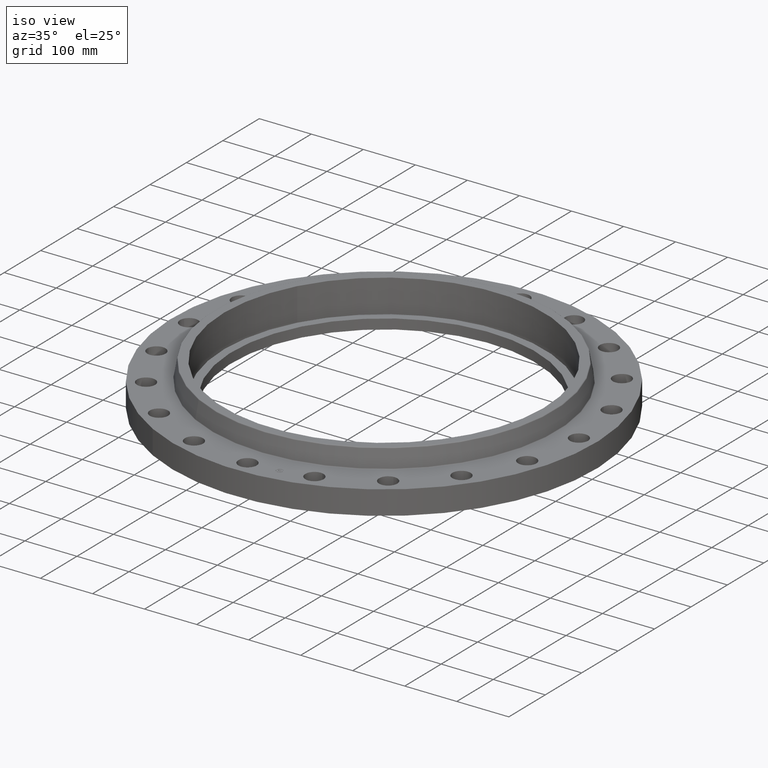
[diagram: clean part render]
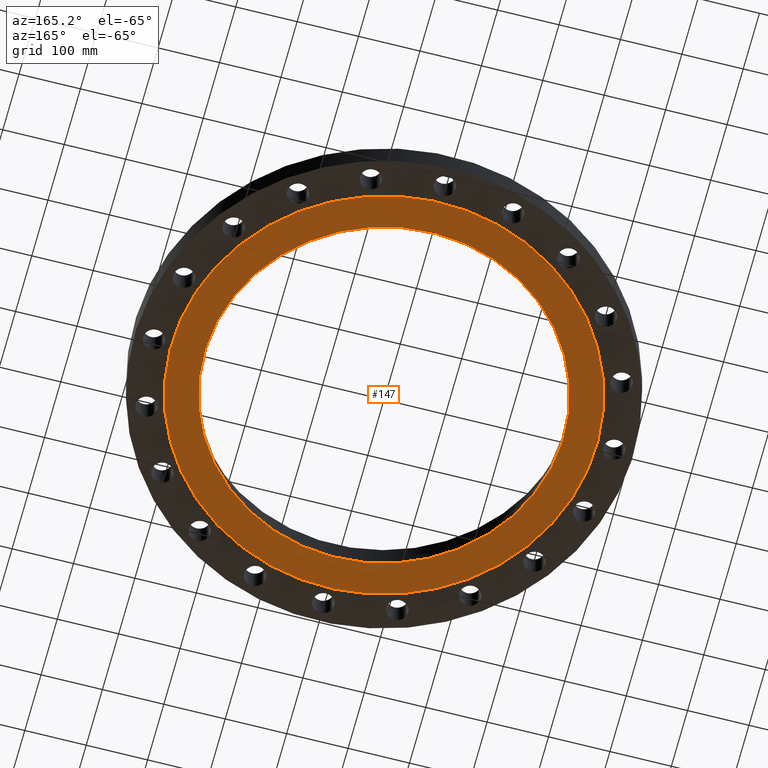
[diagram: tour spotlight — one face highlighted and labeled with its STEP entity id]
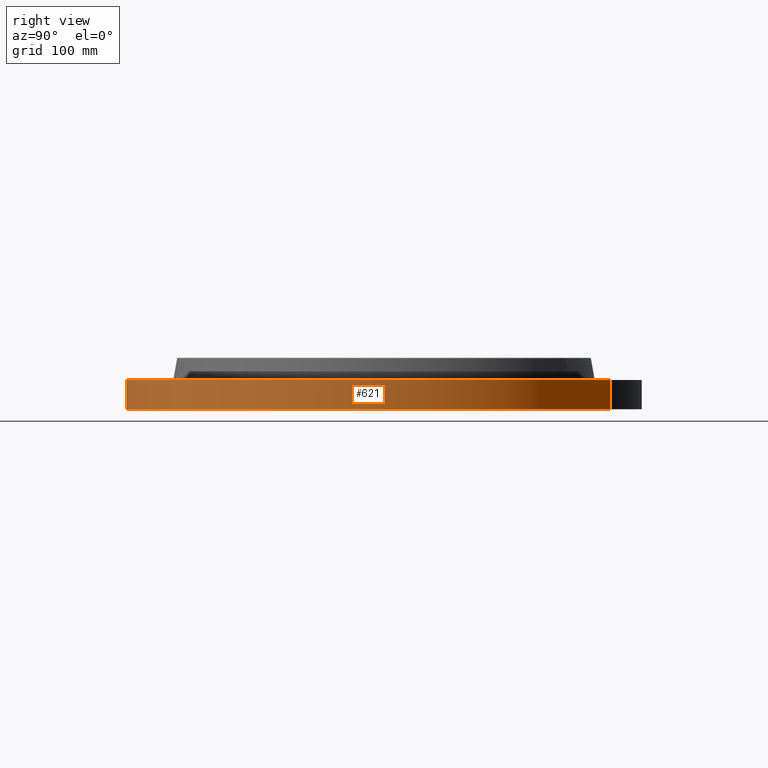
[diagram: tour spotlight — one face highlighted and labeled with its STEP entity id]
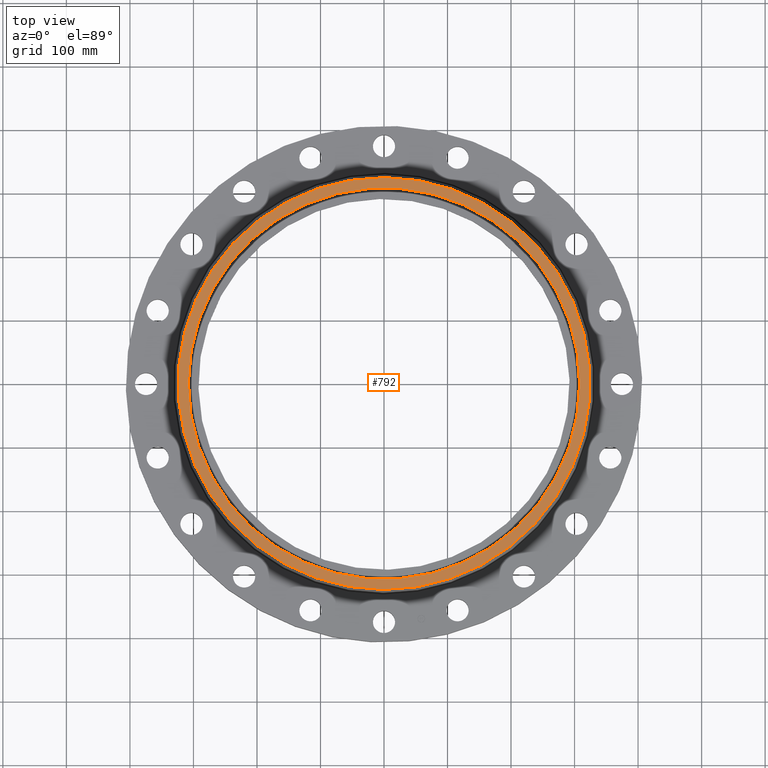
[diagram: tour spotlight — one face highlighted and labeled with its STEP entity id]
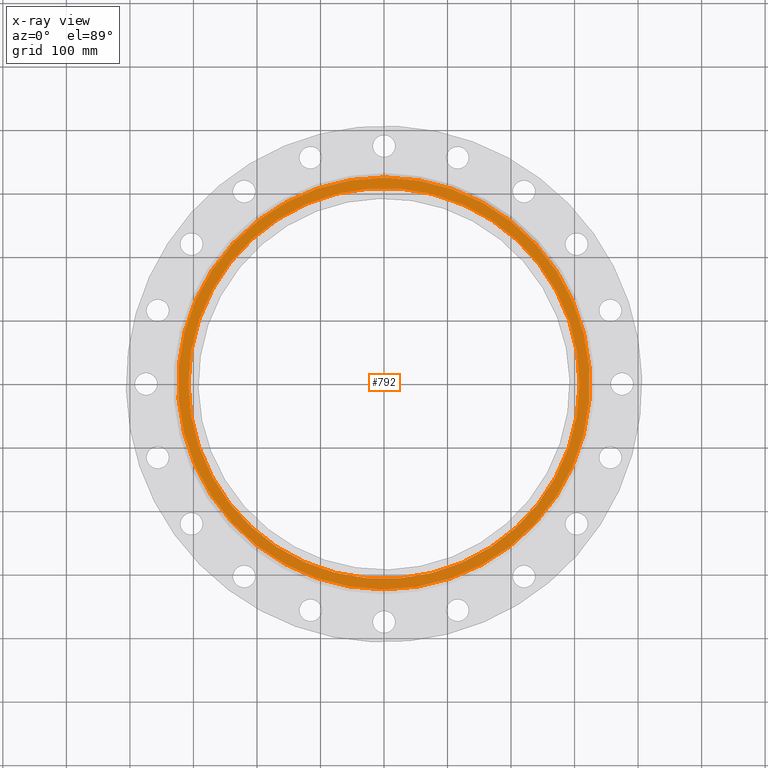
[diagram: x-ray of the same camera — body ghosted, this tour face saturated]
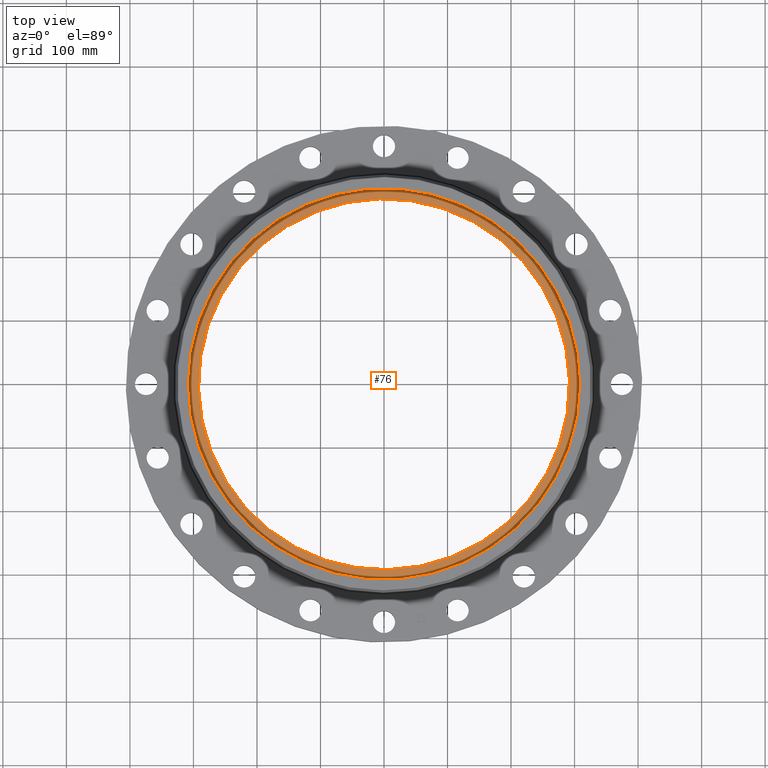
[diagram: tour spotlight — one face highlighted and labeled with its STEP entity id]
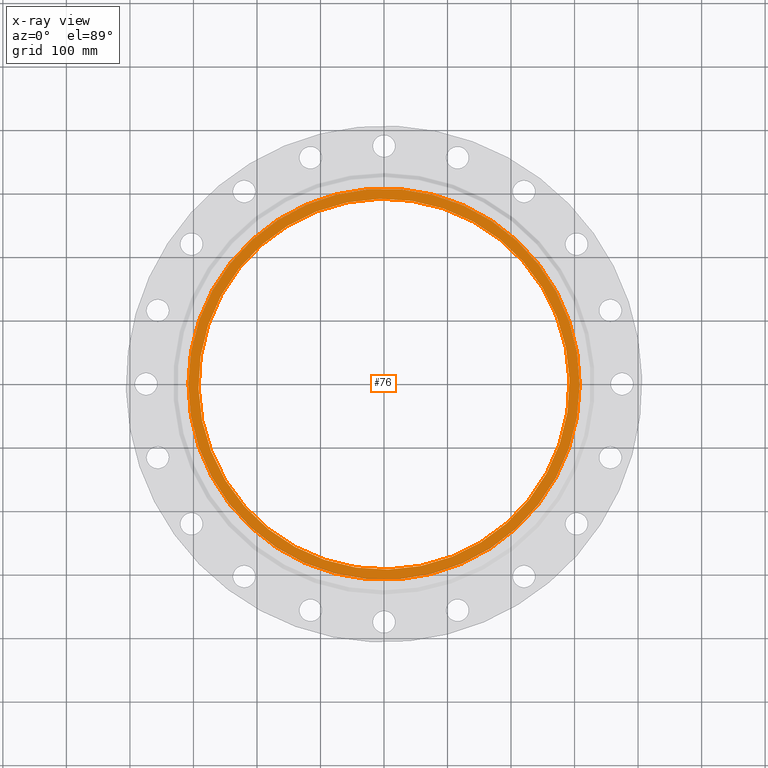
[diagram: x-ray of the same camera — body ghosted, this tour face saturated]
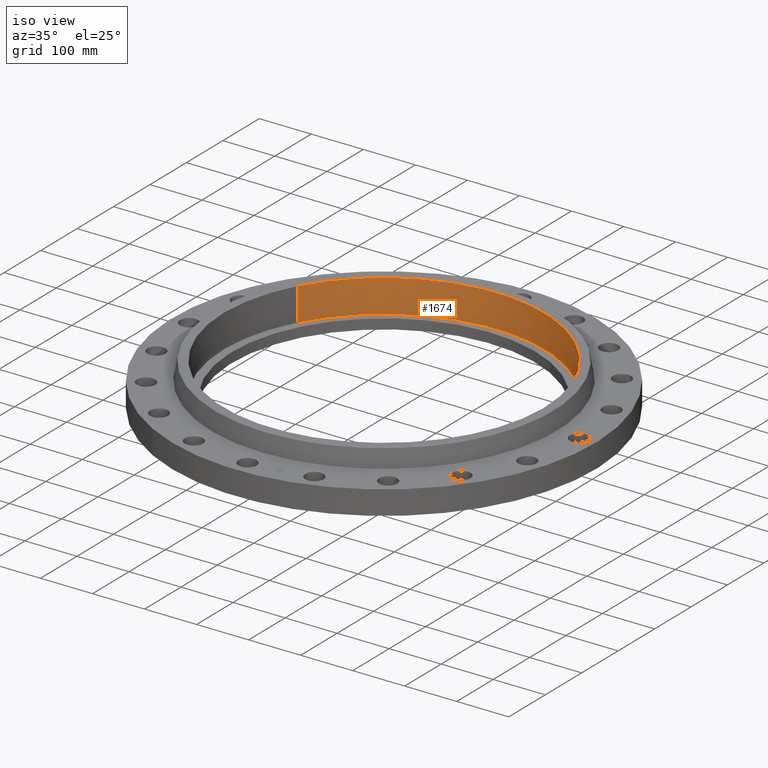
[diagram: tour spotlight — one face highlighted and labeled with its STEP entity id]
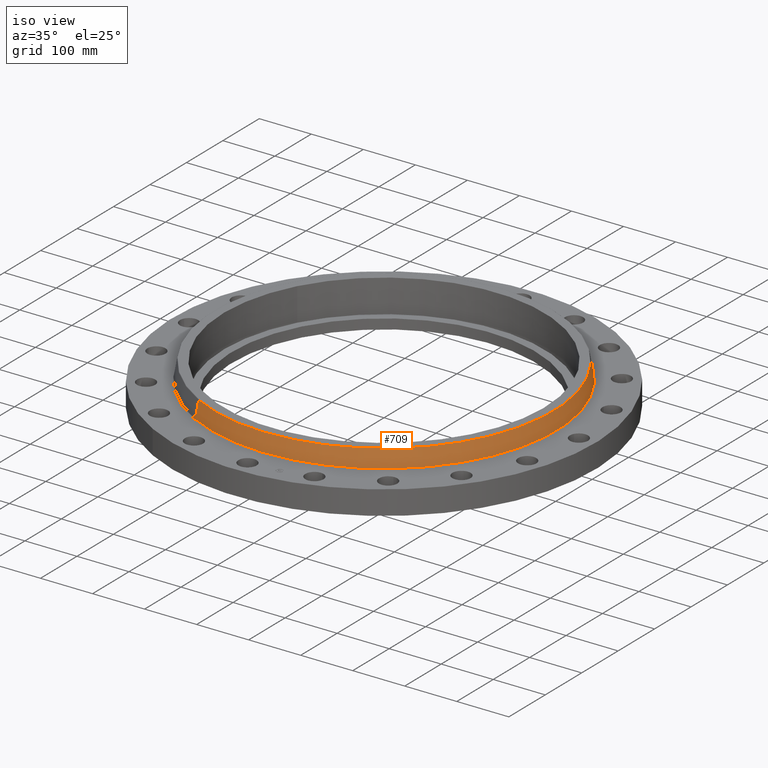
[diagram: tour spotlight — one face highlighted and labeled with its STEP entity id]
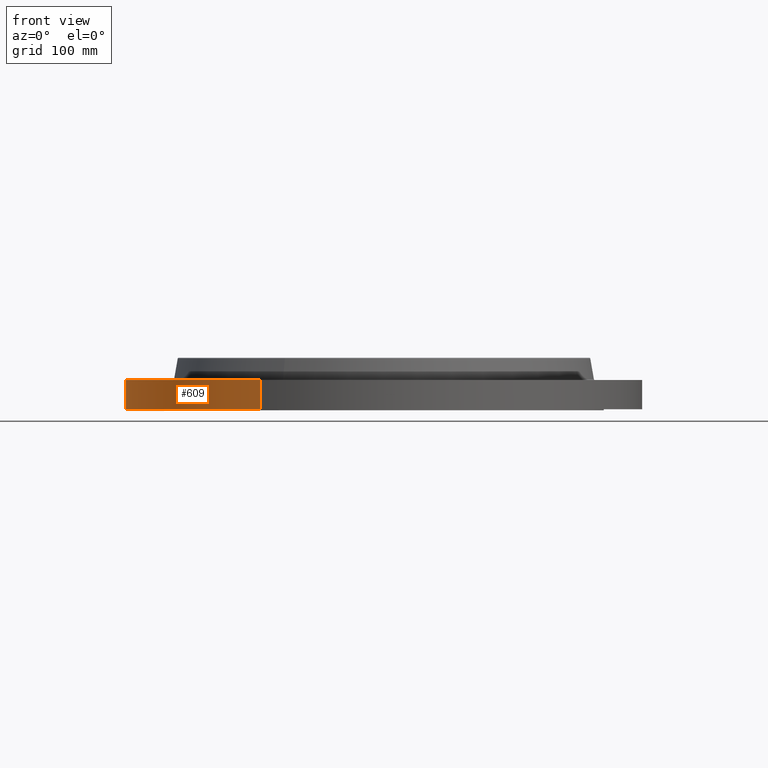
[diagram: tour spotlight — one face highlighted and labeled with its STEP entity id]
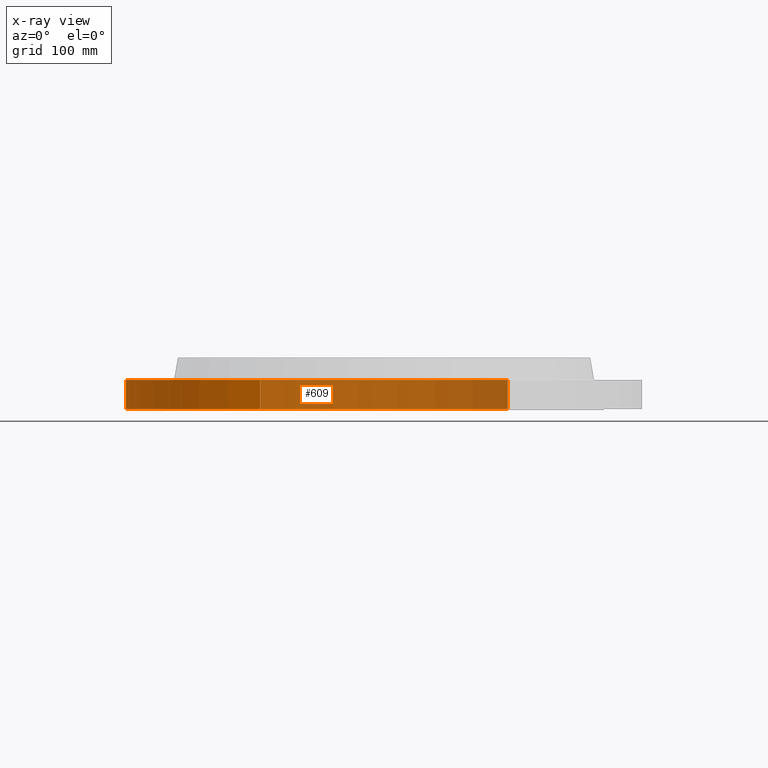
[diagram: x-ray of the same camera — body ghosted, this tour face saturated]
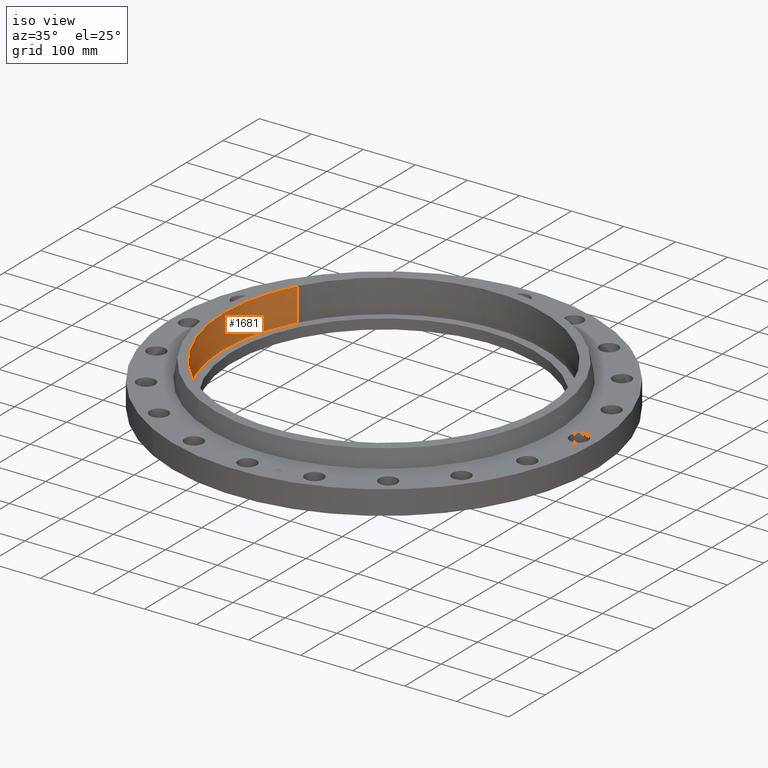
[diagram: tour spotlight — one face highlighted and labeled with its STEP entity id]
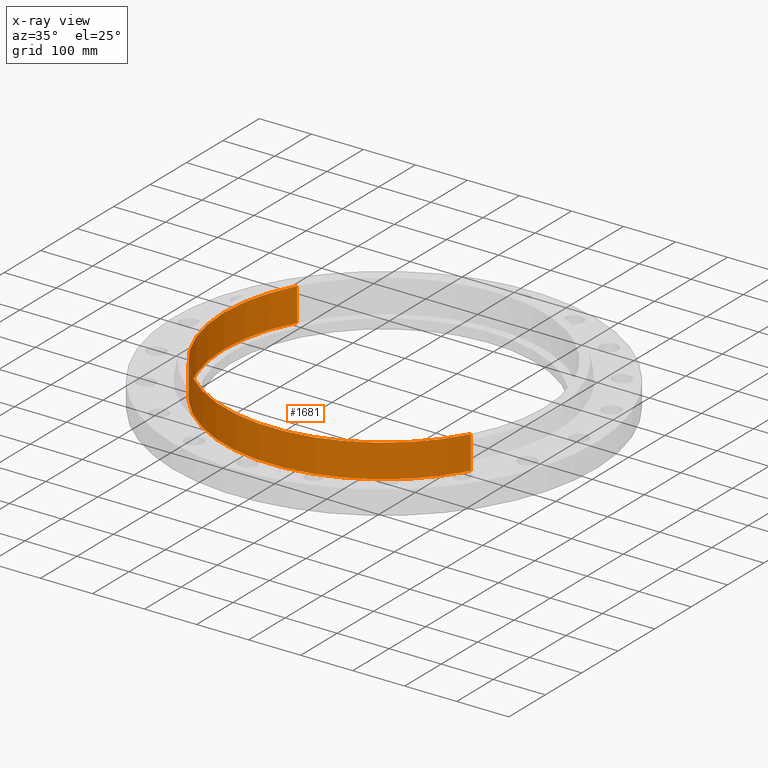
[diagram: x-ray of the same camera — body ghosted, this tour face saturated]
A machine part: a face-by-face anatomy tour. The part has 444 B-rep faces; the first image is the clean iso view, then the 8 largest visible faces are spotlighted one at a time (largest first), each with its STEP entity span.

Face 1 — auxiliary view, entity #147. In plain terms, the highlighted planar face has unit normal (0, 0, -1).
Definition (entity closure, byte-faithful):
#91=AXIS2_PLACEMENT_3D('Circle Axis2P3D',#89,#90,$) ;
#110=AXIS2_PLACEMENT_3D('Circle Axis2P3D',#108,#109,$) ;
#123=AXIS2_PLACEMENT_3D('Plane Axis2P3D',#120,#121,#122) ;
#127=AXIS2_PLACEMENT_3D('Circle Axis2P3D',#125,#126,$) ;
#136=AXIS2_PLACEMENT_3D('Circle Axis2P3D',#134,#135,$) ;
#86=CARTESIAN_POINT('Vertex',(5.51339369397,10.0921994618,-0.0625000000004)) ;
#89=CARTESIAN_POINT('Axis2P3D Location',(0.,0.,-0.0625000000004)) ;
#93=CARTESIAN_POINT('Vertex',(-5.51339369397,-10.0921994618,-0.0625000000004)) ;
#108=CARTESIAN_POINT('Axis2P3D Location',(0.,0.,-0.0625000000004)) ;
#120=CARTESIAN_POINT('Axis2P3D Location',(0.,11.5,-0.0625000000003)) ;
#125=CARTESIAN_POINT('Axis2P3D Location',(0.,0.,-0.0625000000003)) ;
#129=CARTESIAN_POINT('Vertex',(-6.53217296351,-11.9570624058,-0.0625000000002)) ;
#131=CARTESIAN_POINT('Vertex',(6.53217296351,11.9570624058,-0.0625000000002)) ;
#134=CARTESIAN_POINT('Axis2P3D Location',(0.,0.,-0.0625000000003)) ;
#90=DIRECTION('Axis2P3D Direction',(0.,0.,-0.0393700787402)) ;
#109=DIRECTION('Axis2P3D Direction',(0.,0.,-0.0393700787402)) ;
#121=DIRECTION('Axis2P3D Direction',(0.,0.,-0.0393700787402)) ;
#122=DIRECTION('Axis2P3D XDirection',(0.0393700787402,0.,0.)) ;
#126=DIRECTION('Axis2P3D Direction',(0.,0.,-0.0393700787402)) ;
#135=DIRECTION('Axis2P3D Direction',(0.,0.,-0.0393700787402)) ;
#140=ORIENTED_EDGE('',*,*,#133,.T.) ;
#141=ORIENTED_EDGE('',*,*,#138,.T.) ;
#144=ORIENTED_EDGE('',*,*,#95,.F.) ;
#145=ORIENTED_EDGE('',*,*,#112,.F.) ;
#146=FACE_BOUND('',#143,.T.) ;
#147=ADVANCED_FACE('PartBody',(#142,#146),#124,.T.) ;
#92=CIRCLE('generated circle',#91,11.5) ;
#111=CIRCLE('generated circle',#110,11.5) ;
#128=CIRCLE('generated circle',#127,13.6250000001) ;
#137=CIRCLE('generated circle',#136,13.6250000001) ;
#95=EDGE_CURVE('',#87,#94,#92,.T.) ;
#112=EDGE_CURVE('',#94,#87,#111,.T.) ;
#133=EDGE_CURVE('',#130,#132,#128,.T.) ;
#138=EDGE_CURVE('',#132,#130,#137,.T.) ;
#139=EDGE_LOOP('',(#140,#141)) ;
#143=EDGE_LOOP('',(#144,#145)) ;
#142=FACE_OUTER_BOUND('',#139,.T.) ;
#124=PLANE('',#123) ;
#87=VERTEX_POINT('',#86) ;
#94=VERTEX_POINT('',#93) ;
#130=VERTEX_POINT('',#129) ;
#132=VERTEX_POINT('',#131) ;

Face 2 — right view, entity #621. In plain terms, the highlighted cylindrical surface (partial cylindrical patch) has radius 406.4 mm, axis along (0, 0, -1).
Definition (entity closure, byte-faithful):
#207=AXIS2_PLACEMENT_3D('Circle Axis2P3D',#205,#206,$) ;
#582=AXIS2_PLACEMENT_3D('Cylinder Axis2P3D',#579,#580,#581) ;
#612=AXIS2_PLACEMENT_3D('Circle Axis2P3D',#610,#611,$) ;
#200=CARTESIAN_POINT('Vertex',(-7.6708086177,-14.0413209903,1.95818864186E-015)) ;
#202=CARTESIAN_POINT('Vertex',(7.6708086177,14.0413209903,1.95818864186E-015)) ;
#205=CARTESIAN_POINT('Axis2P3D Location',(0.,0.,0.)) ;
#579=CARTESIAN_POINT('Axis2P3D Location',(0.,0.,1.56375000001)) ;
#584=CARTESIAN_POINT('Line Origine',(-7.6708086177,-14.0413209903,0.905000000004)) ;
#588=CARTESIAN_POINT('Vertex',(-7.6708086177,-14.0413209903,1.81000000001)) ;
#595=CARTESIAN_POINT('Vertex',(7.6708086177,14.0413209903,1.81000000001)) ;
#598=CARTESIAN_POINT('Line Origine',(7.6708086177,14.0413209903,0.905000000004)) ;
#610=CARTESIAN_POINT('Axis2P3D Location',(0.,0.,1.81000000001)) ;
#206=DIRECTION('Axis2P3D Direction',(0.,0.,-0.0393700787402)) ;
#580=DIRECTION('Axis2P3D Direction',(0.,0.,-0.0393700787402)) ;
#581=DIRECTION('Axis2P3D XDirection',(0.0188750212049,0.0345504945626,0.)) ;
#585=DIRECTION('Vector Direction',(0.,0.,-0.0393700787402)) ;
#599=DIRECTION('Vector Direction',(0.,0.,-0.0393700787402)) ;
#611=DIRECTION('Axis2P3D Direction',(0.,0.,-0.0393700787402)) ;
#586=VECTOR('Line Direction',#585,0.0393700787402) ;
#600=VECTOR('Line Direction',#599,0.0393700787402) ;
#616=ORIENTED_EDGE('',*,*,#209,.F.) ;
#617=ORIENTED_EDGE('',*,*,#602,.T.) ;
#618=ORIENTED_EDGE('',*,*,#614,.T.) ;
#619=ORIENTED_EDGE('',*,*,#590,.F.) ;
#621=ADVANCED_FACE('PartBody',(#620),#583,.T.) ;
#208=CIRCLE('generated circle',#207,16.0000000001) ;
#613=CIRCLE('generated circle',#612,16.0000000001) ;
#583=CYLINDRICAL_SURFACE('generated cylinder',#582,16.0000000001) ;
#209=EDGE_CURVE('',#203,#201,#208,.T.) ;
#590=EDGE_CURVE('',#201,#589,#587,.F.) ;
#602=EDGE_CURVE('',#203,#596,#601,.F.) ;
#614=EDGE_CURVE('',#596,#589,#613,.T.) ;
#615=EDGE_LOOP('',(#616,#617,#618,#619)) ;
#620=FACE_OUTER_BOUND('',#615,.T.) ;
#587=LINE('Line',#584,#586) ;
#601=LINE('Line',#598,#600) ;
#201=VERTEX_POINT('',#200) ;
#203=VERTEX_POINT('',#202) ;
#589=VERTEX_POINT('',#588) ;
#596=VERTEX_POINT('',#595) ;

Face 3 — top view, entity #792. An x-ray twin of the same camera follows (body ghosted, this face saturated) — the face is partly hidden behind the body. In plain terms, the highlighted planar face has unit normal (0, 0, -1).
Definition (entity closure, byte-faithful):
#736=AXIS2_PLACEMENT_3D('Circle Axis2P3D',#734,#735,$) ;
#755=AXIS2_PLACEMENT_3D('Circle Axis2P3D',#753,#754,$) ;
#768=AXIS2_PLACEMENT_3D('Plane Axis2P3D',#765,#766,#767) ;
#776=AXIS2_PLACEMENT_3D('Circle Axis2P3D',#774,#775,$) ;
#785=AXIS2_PLACEMENT_3D('Circle Axis2P3D',#783,#784,$) ;
#731=CARTESIAN_POINT('Vertex',(6.12050117902,11.2035022589,3.19000000001)) ;
#734=CARTESIAN_POINT('Axis2P3D Location',(0.,0.,3.19000000001)) ;
#738=CARTESIAN_POINT('Vertex',(-6.12050117902,-11.2035022589,3.19000000001)) ;
#753=CARTESIAN_POINT('Axis2P3D Location',(0.,0.,3.19000000001)) ;
#765=CARTESIAN_POINT('Axis2P3D Location',(0.,12.7663227888,3.19000000001)) ;
#774=CARTESIAN_POINT('Axis2P3D Location',(2.79741234551E-016,0.,3.19000000001)) ;
#778=CARTESIAN_POINT('Vertex',(-10.640688563,5.8130346556,3.19000000001)) ;
#780=CARTESIAN_POINT('Vertex',(10.640688563,-5.8130346556,3.19000000001)) ;
#783=CARTESIAN_POINT('Axis2P3D Location',(2.23792987641E-015,0.,3.19000000001)) ;
#735=DIRECTION('Axis2P3D Direction',(0.,0.,-0.0393700787402)) ;
#754=DIRECTION('Axis2P3D Direction',(0.,0.,-0.0393700787402)) ;
#766=DIRECTION('Axis2P3D Direction',(0.,0.,-0.0393700787402)) ;
#767=DIRECTION('Axis2P3D XDirection',(0.0393700787402,0.,0.)) ;
#775=DIRECTION('Axis2P3D Direction',(0.,0.,-0.0393700787402)) ;
#784=DIRECTION('Axis2P3D Direction',(0.,0.,-0.0393700787402)) ;
#771=ORIENTED_EDGE('',*,*,#740,.F.) ;
#772=ORIENTED_EDGE('',*,*,#757,.F.) ;
#789=ORIENTED_EDGE('',*,*,#782,.T.) ;
#790=ORIENTED_EDGE('',*,*,#787,.T.) ;
#791=FACE_BOUND('',#788,.T.) ;
#792=ADVANCED_FACE('PartBody',(#773,#791),#769,.F.) ;
#737=CIRCLE('generated circle',#736,12.7663227888) ;
#756=CIRCLE('generated circle',#755,12.7663227888) ;
#777=CIRCLE('generated circle',#776,12.125) ;
#786=CIRCLE('generated circle',#785,12.125) ;
#740=EDGE_CURVE('',#732,#739,#737,.T.) ;
#757=EDGE_CURVE('',#739,#732,#756,.T.) ;
#782=EDGE_CURVE('',#779,#781,#777,.T.) ;
#787=EDGE_CURVE('',#781,#779,#786,.T.) ;
#770=EDGE_LOOP('',(#771,#772)) ;
#788=EDGE_LOOP('',(#789,#790)) ;
#773=FACE_OUTER_BOUND('',#770,.T.) ;
#769=PLANE('',#768) ;
#732=VERTEX_POINT('',#731) ;
#739=VERTEX_POINT('',#738) ;
#779=VERTEX_POINT('',#778) ;
#781=VERTEX_POINT('',#780) ;

Face 4 — top view, entity #76. An x-ray twin of the same camera follows (body ghosted, this face saturated) — the face is partly hidden behind the body. In plain terms, the highlighted planar face has unit normal (0, 0, -1).
Definition (entity closure, byte-faithful):
#38=AXIS2_PLACEMENT_3D('Plane Axis2P3D',#35,#36,#37) ;
#42=AXIS2_PLACEMENT_3D('Circle Axis2P3D',#40,#41,$) ;
#51=AXIS2_PLACEMENT_3D('Circle Axis2P3D',#49,#50,$) ;
#60=AXIS2_PLACEMENT_3D('Circle Axis2P3D',#58,#59,$) ;
#69=AXIS2_PLACEMENT_3D('Circle Axis2P3D',#67,#68,$) ;
#35=CARTESIAN_POINT('Axis2P3D Location',(1.39870617276E-016,1.04902962957E-016,0.690000000003)) ;
#40=CARTESIAN_POINT('Axis2P3D Location',(1.39870617276E-016,1.04902962957E-016,0.690000000003)) ;
#44=CARTESIAN_POINT('Vertex',(-10.640688563,5.8130346556,0.690000000003)) ;
#46=CARTESIAN_POINT('Vertex',(10.640688563,-5.8130346556,0.690000000003)) ;
#49=CARTESIAN_POINT('Axis2P3D Location',(1.39870617276E-016,1.04902962957E-016,0.690000000003)) ;
#58=CARTESIAN_POINT('Axis2P3D Location',(-2.09805925913E-015,-1.2938032098E-015,0.690000000003)) ;
#62=CARTESIAN_POINT('Vertex',(-5.51339369397,-10.0921994618,0.690000000003)) ;
#64=CARTESIAN_POINT('Vertex',(5.51339369397,10.0921994618,0.690000000003)) ;
#67=CARTESIAN_POINT('Axis2P3D Location',(1.25883555548E-015,1.22386790116E-015,0.690000000003)) ;
#36=DIRECTION('Axis2P3D Direction',(0.,0.,-0.0393700787402)) ;
#37=DIRECTION('Axis2P3D XDirection',(0.0393700787402,0.,0.)) ;
#41=DIRECTION('Axis2P3D Direction',(0.,0.,-0.0393700787402)) ;
#50=DIRECTION('Axis2P3D Direction',(0.,0.,-0.0393700787402)) ;
#59=DIRECTION('Axis2P3D Direction',(0.,0.,-0.0393700787402)) ;
#68=DIRECTION('Axis2P3D Direction',(0.,0.,-0.0393700787402)) ;
#55=ORIENTED_EDGE('',*,*,#48,.F.) ;
#56=ORIENTED_EDGE('',*,*,#53,.F.) ;
#73=ORIENTED_EDGE('',*,*,#66,.T.) ;
#74=ORIENTED_EDGE('',*,*,#71,.T.) ;
#75=FACE_BOUND('',#72,.T.) ;
#76=ADVANCED_FACE('PartBody',(#57,#75),#39,.F.) ;
#43=CIRCLE('generated circle',#42,12.125) ;
#52=CIRCLE('generated circle',#51,12.125) ;
#61=CIRCLE('generated circle',#60,11.5) ;
#70=CIRCLE('generated circle',#69,11.5) ;
#48=EDGE_CURVE('',#45,#47,#43,.T.) ;
#53=EDGE_CURVE('',#47,#45,#52,.T.) ;
#66=EDGE_CURVE('',#63,#65,#61,.T.) ;
#71=EDGE_CURVE('',#65,#63,#70,.T.) ;
#54=EDGE_LOOP('',(#55,#56)) ;
#72=EDGE_LOOP('',(#73,#74)) ;
#57=FACE_OUTER_BOUND('',#54,.T.) ;
#39=PLANE('',#38) ;
#45=VERTEX_POINT('',#44) ;
#47=VERTEX_POINT('',#46) ;
#63=VERTEX_POINT('',#62) ;
#65=VERTEX_POINT('',#64) ;

Face 5 — iso view, entity #1674. In plain terms, the highlighted cylindrical surface (partial cylindrical patch) has radius 307.975 mm, axis along (0, 0, -1).
Definition (entity closure, byte-faithful):
#42=AXIS2_PLACEMENT_3D('Circle Axis2P3D',#40,#41,$) ;
#776=AXIS2_PLACEMENT_3D('Circle Axis2P3D',#774,#775,$) ;
#1656=AXIS2_PLACEMENT_3D('Cylinder Axis2P3D',#1653,#1654,#1655) ;
#40=CARTESIAN_POINT('Axis2P3D Location',(1.39870617276E-016,1.04902962957E-016,0.690000000003)) ;
#44=CARTESIAN_POINT('Vertex',(-10.640688563,5.8130346556,0.690000000003)) ;
#46=CARTESIAN_POINT('Vertex',(10.640688563,-5.8130346556,0.690000000003)) ;
#774=CARTESIAN_POINT('Axis2P3D Location',(2.79741234551E-016,0.,3.19000000001)) ;
#778=CARTESIAN_POINT('Vertex',(-10.640688563,5.8130346556,3.19000000001)) ;
#780=CARTESIAN_POINT('Vertex',(10.640688563,-5.8130346556,3.19000000001)) ;
#1653=CARTESIAN_POINT('Axis2P3D Location',(1.39870617276E-016,1.04902962957E-016,3.18606299214)) ;
#1658=CARTESIAN_POINT('Line Origine',(-10.640688563,5.8130346556,1.94000000001)) ;
#1663=CARTESIAN_POINT('Line Origine',(10.640688563,-5.8130346556,1.94000000001)) ;
#41=DIRECTION('Axis2P3D Direction',(0.,0.,-0.0393700787402)) ;
#775=DIRECTION('Axis2P3D Direction',(0.,0.,-0.0393700787402)) ;
#1654=DIRECTION('Axis2P3D Direction',(0.,0.,-0.0393700787402)) ;
#1655=DIRECTION('Axis2P3D XDirection',(0.0345504945626,-0.0188750212049,0.)) ;
#1659=DIRECTION('Vector Direction',(0.,0.,-0.0393700787402)) ;
#1664=DIRECTION('Vector Direction',(0.,0.,-0.0393700787402)) ;
#1660=VECTOR('Line Direction',#1659,0.0393700787402) ;
#1665=VECTOR('Line Direction',#1664,0.0393700787402) ;
#1669=ORIENTED_EDGE('',*,*,#782,.F.) ;
#1670=ORIENTED_EDGE('',*,*,#1662,.F.) ;
#1671=ORIENTED_EDGE('',*,*,#48,.T.) ;
#1672=ORIENTED_EDGE('',*,*,#1667,.T.) ;
#1674=ADVANCED_FACE('PartBody',(#1673),#1657,.F.) ;
#43=CIRCLE('generated circle',#42,12.125) ;
#777=CIRCLE('generated circle',#776,12.125) ;
#1657=CYLINDRICAL_SURFACE('generated cylinder',#1656,12.125) ;
#48=EDGE_CURVE('',#45,#47,#43,.T.) ;
#782=EDGE_CURVE('',#779,#781,#777,.T.) ;
#1662=EDGE_CURVE('',#45,#779,#1661,.F.) ;
#1667=EDGE_CURVE('',#47,#781,#1666,.F.) ;
#1668=EDGE_LOOP('',(#1669,#1670,#1671,#1672)) ;
#1673=FACE_OUTER_BOUND('',#1668,.T.) ;
#1661=LINE('Line',#1658,#1660) ;
#1666=LINE('Line',#1663,#1665) ;
#45=VERTEX_POINT('',#44) ;
#47=VERTEX_POINT('',#46) ;
#779=VERTEX_POINT('',#778) ;
#781=VERTEX_POINT('',#780) ;

Face 6 — iso view, entity #709. In plain terms, the highlighted conical surface has half-angle 10 deg.
Definition (entity closure, byte-faithful):
#645=AXIS2_PLACEMENT_3D('Circle Axis2P3D',#643,#644,$) ;
#682=AXIS2_PLACEMENT_3D('Cone Axis2P3D',#679,#680,#681) ;
#693=AXIS2_PLACEMENT_3D('Circle Axis2P3D',#691,#692,$) ;
#640=CARTESIAN_POINT('Vertex',(6.25710616251,11.4535560039,1.85958110935)) ;
#643=CARTESIAN_POINT('Axis2P3D Location',(0.,0.,1.85958110935)) ;
#647=CARTESIAN_POINT('Vertex',(-6.25710616251,-11.4535560039,1.85958110935)) ;
#679=CARTESIAN_POINT('Axis2P3D Location',(0.,0.,3.14041889067)) ;
#684=CARTESIAN_POINT('Line Origine',(6.20296793039,11.3544566347,2.50000000001)) ;
#688=CARTESIAN_POINT('Vertex',(6.14882969826,11.2553572656,3.14041889067)) ;
#691=CARTESIAN_POINT('Axis2P3D Location',(0.,0.,3.14041889067)) ;
#695=CARTESIAN_POINT('Vertex',(-6.14882969826,-11.2553572656,3.14041889067)) ;
#698=CARTESIAN_POINT('Line Origine',(-6.20296793039,-11.3544566347,2.50000000001)) ;
#644=DIRECTION('Axis2P3D Direction',(0.,0.,-0.0393700787402)) ;
#680=DIRECTION('Axis2P3D Direction',(0.,0.,-0.0393700787402)) ;
#681=DIRECTION('Axis2P3D XDirection',(-0.0188750212049,-0.0345504945626,0.)) ;
#685=DIRECTION('Vector Direction',(0.00327761303565,0.00599963041829,-0.03877195878)) ;
#692=DIRECTION('Axis2P3D Direction',(0.,0.,-0.0393700787402)) ;
#699=DIRECTION('Vector Direction',(-0.00327761303565,-0.00599963041829,-0.03877195878)) ;
#686=VECTOR('Line Direction',#685,0.0393700787402) ;
#700=VECTOR('Line Direction',#699,0.0393700787402) ;
#704=ORIENTED_EDGE('',*,*,#649,.F.) ;
#705=ORIENTED_EDGE('',*,*,#690,.T.) ;
#706=ORIENTED_EDGE('',*,*,#697,.T.) ;
#707=ORIENTED_EDGE('',*,*,#702,.F.) ;
#709=ADVANCED_FACE('PartBody',(#708),#683,.T.) ;
#646=CIRCLE('generated circle',#645,13.0512575127) ;
#694=CIRCLE('generated circle',#693,12.825411254) ;
#683=CONICAL_SURFACE('Cone',#682,12.825411254,0.174532925199) ;
#649=EDGE_CURVE('',#641,#648,#646,.T.) ;
#690=EDGE_CURVE('',#641,#689,#687,.F.) ;
#697=EDGE_CURVE('',#689,#696,#694,.T.) ;
#702=EDGE_CURVE('',#648,#696,#701,.F.) ;
#703=EDGE_LOOP('',(#704,#705,#706,#707)) ;
#708=FACE_OUTER_BOUND('',#703,.T.) ;
#687=LINE('Line',#684,#686) ;
#701=LINE('Line',#698,#700) ;
#641=VERTEX_POINT('',#640) ;
#648=VERTEX_POINT('',#647) ;
#689=VERTEX_POINT('',#688) ;
#696=VERTEX_POINT('',#695) ;

Face 7 — front view, entity #609. An x-ray twin of the same camera follows (body ghosted, this face saturated) — the face is partly hidden behind the body. In plain terms, the highlighted cylindrical surface (partial cylindrical patch) has radius 406.4 mm, axis along (0, 0, -1).
Definition (entity closure, byte-faithful):
#198=AXIS2_PLACEMENT_3D('Circle Axis2P3D',#196,#197,$) ;
#582=AXIS2_PLACEMENT_3D('Cylinder Axis2P3D',#579,#580,#581) ;
#593=AXIS2_PLACEMENT_3D('Circle Axis2P3D',#591,#592,$) ;
#196=CARTESIAN_POINT('Axis2P3D Location',(0.,0.,0.)) ;
#200=CARTESIAN_POINT('Vertex',(-7.6708086177,-14.0413209903,1.95818864186E-015)) ;
#202=CARTESIAN_POINT('Vertex',(7.6708086177,14.0413209903,1.95818864186E-015)) ;
#579=CARTESIAN_POINT('Axis2P3D Location',(0.,0.,1.56375000001)) ;
#584=CARTESIAN_POINT('Line Origine',(-7.6708086177,-14.0413209903,0.905000000004)) ;
#588=CARTESIAN_POINT('Vertex',(-7.6708086177,-14.0413209903,1.81000000001)) ;
#591=CARTESIAN_POINT('Axis2P3D Location',(0.,0.,1.81000000001)) ;
#595=CARTESIAN_POINT('Vertex',(7.6708086177,14.0413209903,1.81000000001)) ;
#598=CARTESIAN_POINT('Line Origine',(7.6708086177,14.0413209903,0.905000000004)) ;
#197=DIRECTION('Axis2P3D Direction',(0.,0.,-0.0393700787402)) ;
#580=DIRECTION('Axis2P3D Direction',(0.,0.,-0.0393700787402)) ;
#581=DIRECTION('Axis2P3D XDirection',(0.0188750212049,0.0345504945626,0.)) ;
#585=DIRECTION('Vector Direction',(0.,0.,-0.0393700787402)) ;
#592=DIRECTION('Axis2P3D Direction',(0.,0.,-0.0393700787402)) ;
#599=DIRECTION('Vector Direction',(0.,0.,-0.0393700787402)) ;
#586=VECTOR('Line Direction',#585,0.0393700787402) ;
#600=VECTOR('Line Direction',#599,0.0393700787402) ;
#604=ORIENTED_EDGE('',*,*,#204,.F.) ;
#605=ORIENTED_EDGE('',*,*,#590,.T.) ;
#606=ORIENTED_EDGE('',*,*,#597,.T.) ;
#607=ORIENTED_EDGE('',*,*,#602,.F.) ;
#609=ADVANCED_FACE('PartBody',(#608),#583,.T.) ;
#199=CIRCLE('generated circle',#198,16.0000000001) ;
#594=CIRCLE('generated circle',#593,16.0000000001) ;
#583=CYLINDRICAL_SURFACE('generated cylinder',#582,16.0000000001) ;
#204=EDGE_CURVE('',#201,#203,#199,.T.) ;
#590=EDGE_CURVE('',#201,#589,#587,.F.) ;
#597=EDGE_CURVE('',#589,#596,#594,.T.) ;
#602=EDGE_CURVE('',#203,#596,#601,.F.) ;
#603=EDGE_LOOP('',(#604,#605,#606,#607)) ;
#608=FACE_OUTER_BOUND('',#603,.T.) ;
#587=LINE('Line',#584,#586) ;
#601=LINE('Line',#598,#600) ;
#201=VERTEX_POINT('',#200) ;
#203=VERTEX_POINT('',#202) ;
#589=VERTEX_POINT('',#588) ;
#596=VERTEX_POINT('',#595) ;

Face 8 — iso view, entity #1681. An x-ray twin of the same camera follows (body ghosted, this face saturated) — the face is partly hidden behind the body. In plain terms, the highlighted cylindrical surface (partial cylindrical patch) has radius 307.975 mm, axis along (0, 0, -1).
Definition (entity closure, byte-faithful):
#51=AXIS2_PLACEMENT_3D('Circle Axis2P3D',#49,#50,$) ;
#785=AXIS2_PLACEMENT_3D('Circle Axis2P3D',#783,#784,$) ;
#1656=AXIS2_PLACEMENT_3D('Cylinder Axis2P3D',#1653,#1654,#1655) ;
#44=CARTESIAN_POINT('Vertex',(-10.640688563,5.8130346556,0.690000000003)) ;
#46=CARTESIAN_POINT('Vertex',(10.640688563,-5.8130346556,0.690000000003)) ;
#49=CARTESIAN_POINT('Axis2P3D Location',(1.39870617276E-016,1.04902962957E-016,0.690000000003)) ;
#778=CARTESIAN_POINT('Vertex',(-10.640688563,5.8130346556,3.19000000001)) ;
#780=CARTESIAN_POINT('Vertex',(10.640688563,-5.8130346556,3.19000000001)) ;
#783=CARTESIAN_POINT('Axis2P3D Location',(2.23792987641E-015,0.,3.19000000001)) ;
#1653=CARTESIAN_POINT('Axis2P3D Location',(1.39870617276E-016,1.04902962957E-016,3.18606299214)) ;
#1658=CARTESIAN_POINT('Line Origine',(-10.640688563,5.8130346556,1.94000000001)) ;
#1663=CARTESIAN_POINT('Line Origine',(10.640688563,-5.8130346556,1.94000000001)) ;
#50=DIRECTION('Axis2P3D Direction',(0.,0.,-0.0393700787402)) ;
#784=DIRECTION('Axis2P3D Direction',(0.,0.,-0.0393700787402)) ;
#1654=DIRECTION('Axis2P3D Direction',(0.,0.,-0.0393700787402)) ;
#1655=DIRECTION('Axis2P3D XDirection',(0.0345504945626,-0.0188750212049,0.)) ;
#1659=DIRECTION('Vector Direction',(0.,0.,-0.0393700787402)) ;
#1664=DIRECTION('Vector Direction',(0.,0.,-0.0393700787402)) ;
#1660=VECTOR('Line Direction',#1659,0.0393700787402) ;
#1665=VECTOR('Line Direction',#1664,0.0393700787402) ;
#1676=ORIENTED_EDGE('',*,*,#787,.F.) ;
#1677=ORIENTED_EDGE('',*,*,#1667,.F.) ;
#1678=ORIENTED_EDGE('',*,*,#53,.T.) ;
#1679=ORIENTED_EDGE('',*,*,#1662,.T.) ;
#1681=ADVANCED_FACE('PartBody',(#1680),#1657,.F.) ;
#52=CIRCLE('generated circle',#51,12.125) ;
#786=CIRCLE('generated circle',#785,12.125) ;
#1657=CYLINDRICAL_SURFACE('generated cylinder',#1656,12.125) ;
#53=EDGE_CURVE('',#47,#45,#52,.T.) ;
#787=EDGE_CURVE('',#781,#779,#786,.T.) ;
#1662=EDGE_CURVE('',#45,#779,#1661,.F.) ;
#1667=EDGE_CURVE('',#47,#781,#1666,.F.) ;
#1675=EDGE_LOOP('',(#1676,#1677,#1678,#1679)) ;
#1680=FACE_OUTER_BOUND('',#1675,.T.) ;
#1661=LINE('Line',#1658,#1660) ;
#1666=LINE('Line',#1663,#1665) ;
#45=VERTEX_POINT('',#44) ;
#47=VERTEX_POINT('',#46) ;
#779=VERTEX_POINT('',#778) ;
#781=VERTEX_POINT('',#780) ;